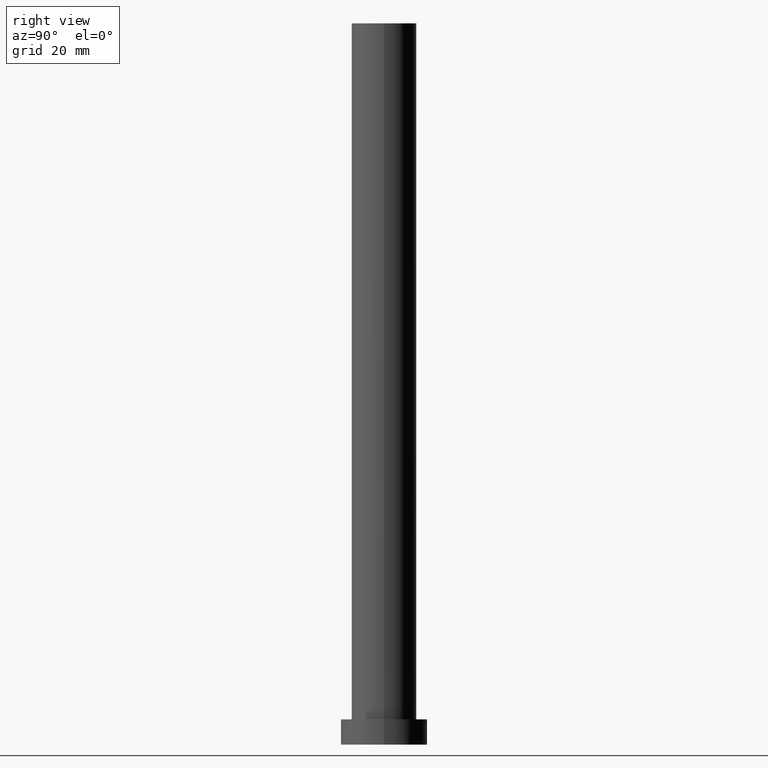
[diagram: clean part render]
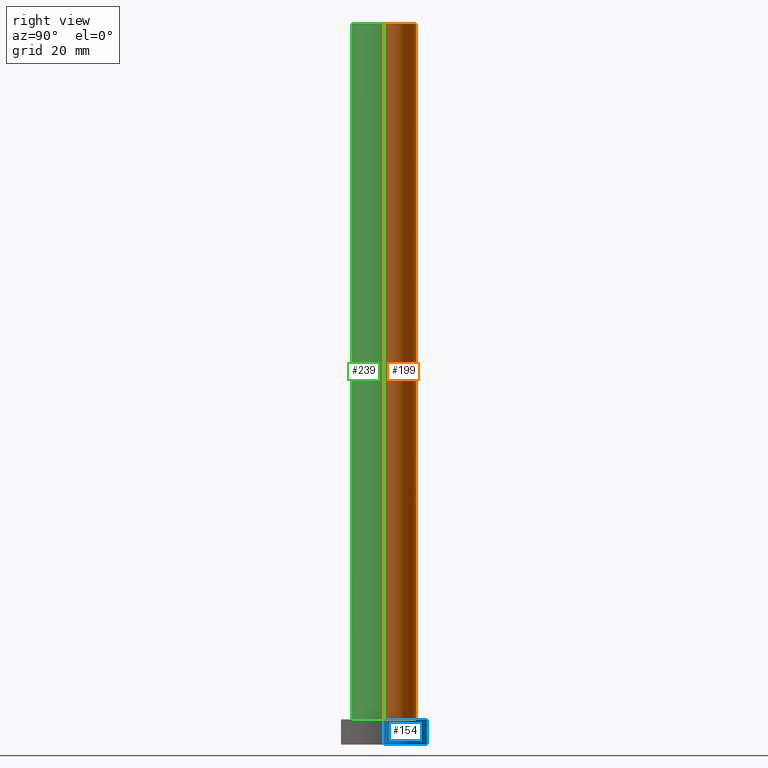
[diagram: same view with three faces highlighted in distinct colors, each labeled with its STEP entity id]
A machine part, right view with three faces highlighted in distinct colors.
Their STEP definitions:

[orange] entity #199 — the highlighted cylindrical surface (edge-blend (fillet) strip) has radius 9 mm, axis along (-0, -0, -1).
#2 = DIRECTION ( 'NONE',  ( -0.000000000000000000, -0.000000000000000000, -1.000000000000000000 ) ) ;
#11 = VERTEX_POINT ( 'NONE', #198 ) ;
#27 = DIRECTION ( 'NONE',  ( -1.000000000000000000, 0.000000000000000000, 0.000000000000000000 ) ) ;
#28 = CARTESIAN_POINT ( 'NONE',  ( 9.000000000000000000, 1.102182119232617714E-15, 200.0000000000000000 ) ) ;
#31 = CARTESIAN_POINT ( 'NONE',  ( -9.000000000000000000, 0.000000000000000000, 200.0000000000000000 ) ) ;
#46 = CARTESIAN_POINT ( 'NONE',  ( 0.000000000000000000, 0.000000000000000000, 200.0000000000000000 ) ) ;
#47 = EDGE_CURVE ( 'NONE', #224, #11, #178, .T. ) ;
#64 = ORIENTED_EDGE ( 'NONE', *, *, #208, .T. ) ;
#66 = VERTEX_POINT ( 'NONE', #79 ) ;
#74 = CIRCLE ( 'NONE', #216, 9.000000000000000000 ) ;
#76 = CIRCLE ( 'NONE', #172, 9.000000000000000000 ) ;
#79 = CARTESIAN_POINT ( 'NONE',  ( -9.000000000000000000, 0.000000000000000000, 7.000000000000000000 ) ) ;
#82 = CARTESIAN_POINT ( 'NONE',  ( -9.000000000000000000, 0.000000000000000000, 200.0000000000000000 ) ) ;
#87 = DIRECTION ( 'NONE',  ( 1.000000000000000000, 0.000000000000000000, 0.000000000000000000 ) ) ;
#106 = CARTESIAN_POINT ( 'NONE',  ( 0.000000000000000000, 0.000000000000000000, 7.000000000000000000 ) ) ;
#110 = AXIS2_PLACEMENT_3D ( 'NONE', #167, #144, #27 ) ;
#113 = EDGE_CURVE ( 'NONE', #193, #66, #121, .T. ) ;
#120 = DIRECTION ( 'NONE',  ( 1.000000000000000000, 0.000000000000000000, 0.000000000000000000 ) ) ;
#121 = LINE ( 'NONE', #82, #194 ) ;
#125 = DIRECTION ( 'NONE',  ( 0.000000000000000000, 0.000000000000000000, 1.000000000000000000 ) ) ;
#142 = ORIENTED_EDGE ( 'NONE', *, *, #251, .F. ) ;
#144 = DIRECTION ( 'NONE',  ( -0.000000000000000000, -0.000000000000000000, -1.000000000000000000 ) ) ;
#155 = ORIENTED_EDGE ( 'NONE', *, *, #113, .F. ) ;
#156 = DIRECTION ( 'NONE',  ( -0.000000000000000000, -0.000000000000000000, -1.000000000000000000 ) ) ;
#167 = CARTESIAN_POINT ( 'NONE',  ( 0.000000000000000000, 0.000000000000000000, 200.0000000000000000 ) ) ;
#172 = AXIS2_PLACEMENT_3D ( 'NONE', #106, #125, #87 ) ;
#178 = LINE ( 'NONE', #28, #180 ) ;
#179 = CYLINDRICAL_SURFACE ( 'NONE', #110, 9.000000000000000000 ) ;
#180 = VECTOR ( 'NONE', #2, 1000.000000000000000 ) ;
#184 = FACE_OUTER_BOUND ( 'NONE', #217, .T. ) ;
#193 = VERTEX_POINT ( 'NONE', #31 ) ;
#194 = VECTOR ( 'NONE', #156, 1000.000000000000000 ) ;
#196 = ORIENTED_EDGE ( 'NONE', *, *, #47, .T. ) ;
#198 = CARTESIAN_POINT ( 'NONE',  ( 9.000000000000000000, 1.102182119232617714E-15, 7.000000000000000000 ) ) ;
#199 = ADVANCED_FACE ( 'NONE', ( #184 ), #179, .T. ) ;
#204 = DIRECTION ( 'NONE',  ( 0.000000000000000000, 0.000000000000000000, 1.000000000000000000 ) ) ;
#208 = EDGE_CURVE ( 'NONE', #11, #66, #76, .T. ) ;
#216 = AXIS2_PLACEMENT_3D ( 'NONE', #46, #204, #120 ) ;
#217 = EDGE_LOOP ( 'NONE', ( #142, #196, #64, #155 ) ) ;
#224 = VERTEX_POINT ( 'NONE', #250 ) ;
#250 = CARTESIAN_POINT ( 'NONE',  ( 9.000000000000000000, 1.102182119232617714E-15, 200.0000000000000000 ) ) ;
#251 = EDGE_CURVE ( 'NONE', #224, #193, #74, .T. ) ;

[blue] entity #154 — the highlighted cylindrical surface (partial cylindrical patch) has radius 12 mm, axis along (-0, -0, -1).
#10 = DIRECTION ( 'NONE',  ( -0.000000000000000000, -0.000000000000000000, -1.000000000000000000 ) ) ;
#13 = DIRECTION ( 'NONE',  ( 1.000000000000000000, 0.000000000000000000, 0.000000000000000000 ) ) ;
#21 = EDGE_CURVE ( 'NONE', #48, #211, #119, .T. ) ;
#34 = DIRECTION ( 'NONE',  ( 0.000000000000000000, 0.000000000000000000, 1.000000000000000000 ) ) ;
#36 = CIRCLE ( 'NONE', #230, 12.00000000000000178 ) ;
#41 = EDGE_CURVE ( 'NONE', #48, #233, #60, .T. ) ;
#48 = VERTEX_POINT ( 'NONE', #218 ) ;
#49 = CARTESIAN_POINT ( 'NONE',  ( -12.00000000000000178, 0.000000000000000000, 7.000000000000000000 ) ) ;
#52 = DIRECTION ( 'NONE',  ( -0.000000000000000000, -0.000000000000000000, -1.000000000000000000 ) ) ;
#60 = CIRCLE ( 'NONE', #189, 12.00000000000000178 ) ;
#69 = FACE_OUTER_BOUND ( 'NONE', #126, .T. ) ;
#81 = CARTESIAN_POINT ( 'NONE',  ( 12.00000000000000178, 1.469576158976824144E-15, 7.000000000000000000 ) ) ;
#84 = AXIS2_PLACEMENT_3D ( 'NONE', #162, #52, #164 ) ;
#97 = DIRECTION ( 'NONE',  ( -0.000000000000000000, -0.000000000000000000, -1.000000000000000000 ) ) ;
#102 = ORIENTED_EDGE ( 'NONE', *, *, #188, .F. ) ;
#103 = LINE ( 'NONE', #49, #151 ) ;
#105 = ORIENTED_EDGE ( 'NONE', *, *, #41, .F. ) ;
#108 = CYLINDRICAL_SURFACE ( 'NONE', #84, 12.00000000000000178 ) ;
#119 = LINE ( 'NONE', #81, #166 ) ;
#126 = EDGE_LOOP ( 'NONE', ( #105, #209, #176, #102 ) ) ;
#137 = CARTESIAN_POINT ( 'NONE',  ( 0.000000000000000000, 0.000000000000000000, 7.000000000000000000 ) ) ;
#151 = VECTOR ( 'NONE', #10, 1000.000000000000000 ) ;
#154 = ADVANCED_FACE ( 'NONE', ( #69 ), #108, .T. ) ;
#162 = CARTESIAN_POINT ( 'NONE',  ( 0.000000000000000000, 0.000000000000000000, 7.000000000000000000 ) ) ;
#163 = EDGE_CURVE ( 'NONE', #211, #220, #36, .T. ) ;
#164 = DIRECTION ( 'NONE',  ( -1.000000000000000000, 0.000000000000000000, 0.000000000000000000 ) ) ;
#166 = VECTOR ( 'NONE', #97, 1000.000000000000000 ) ;
#173 = DIRECTION ( 'NONE',  ( 0.000000000000000000, 0.000000000000000000, 1.000000000000000000 ) ) ;
#176 = ORIENTED_EDGE ( 'NONE', *, *, #163, .T. ) ;
#188 = EDGE_CURVE ( 'NONE', #233, #220, #103, .T. ) ;
#189 = AXIS2_PLACEMENT_3D ( 'NONE', #137, #173, #246 ) ;
#200 = CARTESIAN_POINT ( 'NONE',  ( 12.00000000000000178, 1.469576158976824144E-15, 0.000000000000000000 ) ) ;
#209 = ORIENTED_EDGE ( 'NONE', *, *, #21, .T. ) ;
#211 = VERTEX_POINT ( 'NONE', #200 ) ;
#218 = CARTESIAN_POINT ( 'NONE',  ( 12.00000000000000178, 1.469576158976824144E-15, 7.000000000000000000 ) ) ;
#220 = VERTEX_POINT ( 'NONE', #226 ) ;
#222 = CARTESIAN_POINT ( 'NONE',  ( 0.000000000000000000, 0.000000000000000000, 0.000000000000000000 ) ) ;
#226 = CARTESIAN_POINT ( 'NONE',  ( -12.00000000000000178, 0.000000000000000000, 0.000000000000000000 ) ) ;
#230 = AXIS2_PLACEMENT_3D ( 'NONE', #222, #34, #13 ) ;
#233 = VERTEX_POINT ( 'NONE', #248 ) ;
#246 = DIRECTION ( 'NONE',  ( 1.000000000000000000, 0.000000000000000000, 0.000000000000000000 ) ) ;
#248 = CARTESIAN_POINT ( 'NONE',  ( -12.00000000000000178, 0.000000000000000000, 7.000000000000000000 ) ) ;

[green] entity #239 — the highlighted cylindrical surface (edge-blend (fillet) strip) has radius 9 mm, axis along (-0, -0, -1).
#2 = DIRECTION ( 'NONE',  ( -0.000000000000000000, -0.000000000000000000, -1.000000000000000000 ) ) ;
#6 = ORIENTED_EDGE ( 'NONE', *, *, #150, .F. ) ;
#11 = VERTEX_POINT ( 'NONE', #198 ) ;
#12 = CARTESIAN_POINT ( 'NONE',  ( 0.000000000000000000, 0.000000000000000000, 7.000000000000000000 ) ) ;
#14 = CIRCLE ( 'NONE', #61, 9.000000000000000000 ) ;
#24 = ORIENTED_EDGE ( 'NONE', *, *, #47, .F. ) ;
#28 = CARTESIAN_POINT ( 'NONE',  ( 9.000000000000000000, 1.102182119232617714E-15, 200.0000000000000000 ) ) ;
#31 = CARTESIAN_POINT ( 'NONE',  ( -9.000000000000000000, 0.000000000000000000, 200.0000000000000000 ) ) ;
#43 = CARTESIAN_POINT ( 'NONE',  ( 0.000000000000000000, 0.000000000000000000, 200.0000000000000000 ) ) ;
#44 = DIRECTION ( 'NONE',  ( 0.000000000000000000, 0.000000000000000000, 1.000000000000000000 ) ) ;
#47 = EDGE_CURVE ( 'NONE', #224, #11, #178, .T. ) ;
#61 = AXIS2_PLACEMENT_3D ( 'NONE', #12, #91, #247 ) ;
#66 = VERTEX_POINT ( 'NONE', #79 ) ;
#68 = FACE_OUTER_BOUND ( 'NONE', #238, .T. ) ;
#79 = CARTESIAN_POINT ( 'NONE',  ( -9.000000000000000000, 0.000000000000000000, 7.000000000000000000 ) ) ;
#82 = CARTESIAN_POINT ( 'NONE',  ( -9.000000000000000000, 0.000000000000000000, 200.0000000000000000 ) ) ;
#83 = ORIENTED_EDGE ( 'NONE', *, *, #113, .T. ) ;
#85 = CARTESIAN_POINT ( 'NONE',  ( 0.000000000000000000, 0.000000000000000000, 200.0000000000000000 ) ) ;
#91 = DIRECTION ( 'NONE',  ( 0.000000000000000000, 0.000000000000000000, 1.000000000000000000 ) ) ;
#98 = ORIENTED_EDGE ( 'NONE', *, *, #177, .T. ) ;
#113 = EDGE_CURVE ( 'NONE', #193, #66, #121, .T. ) ;
#121 = LINE ( 'NONE', #82, #194 ) ;
#139 = CYLINDRICAL_SURFACE ( 'NONE', #148, 9.000000000000000000 ) ;
#140 = CIRCLE ( 'NONE', #236, 9.000000000000000000 ) ;
#145 = DIRECTION ( 'NONE',  ( -0.000000000000000000, -0.000000000000000000, -1.000000000000000000 ) ) ;
#148 = AXIS2_PLACEMENT_3D ( 'NONE', #85, #145, #219 ) ;
#150 = EDGE_CURVE ( 'NONE', #193, #224, #140, .T. ) ;
#156 = DIRECTION ( 'NONE',  ( -0.000000000000000000, -0.000000000000000000, -1.000000000000000000 ) ) ;
#177 = EDGE_CURVE ( 'NONE', #66, #11, #14, .T. ) ;
#178 = LINE ( 'NONE', #28, #180 ) ;
#180 = VECTOR ( 'NONE', #2, 1000.000000000000000 ) ;
#193 = VERTEX_POINT ( 'NONE', #31 ) ;
#194 = VECTOR ( 'NONE', #156, 1000.000000000000000 ) ;
#198 = CARTESIAN_POINT ( 'NONE',  ( 9.000000000000000000, 1.102182119232617714E-15, 7.000000000000000000 ) ) ;
#219 = DIRECTION ( 'NONE',  ( -1.000000000000000000, 0.000000000000000000, 0.000000000000000000 ) ) ;
#224 = VERTEX_POINT ( 'NONE', #250 ) ;
#225 = DIRECTION ( 'NONE',  ( 1.000000000000000000, 0.000000000000000000, 0.000000000000000000 ) ) ;
#236 = AXIS2_PLACEMENT_3D ( 'NONE', #43, #44, #225 ) ;
#238 = EDGE_LOOP ( 'NONE', ( #24, #6, #83, #98 ) ) ;
#239 = ADVANCED_FACE ( 'NONE', ( #68 ), #139, .T. ) ;
#247 = DIRECTION ( 'NONE',  ( 1.000000000000000000, 0.000000000000000000, 0.000000000000000000 ) ) ;
#250 = CARTESIAN_POINT ( 'NONE',  ( 9.000000000000000000, 1.102182119232617714E-15, 200.0000000000000000 ) ) ;